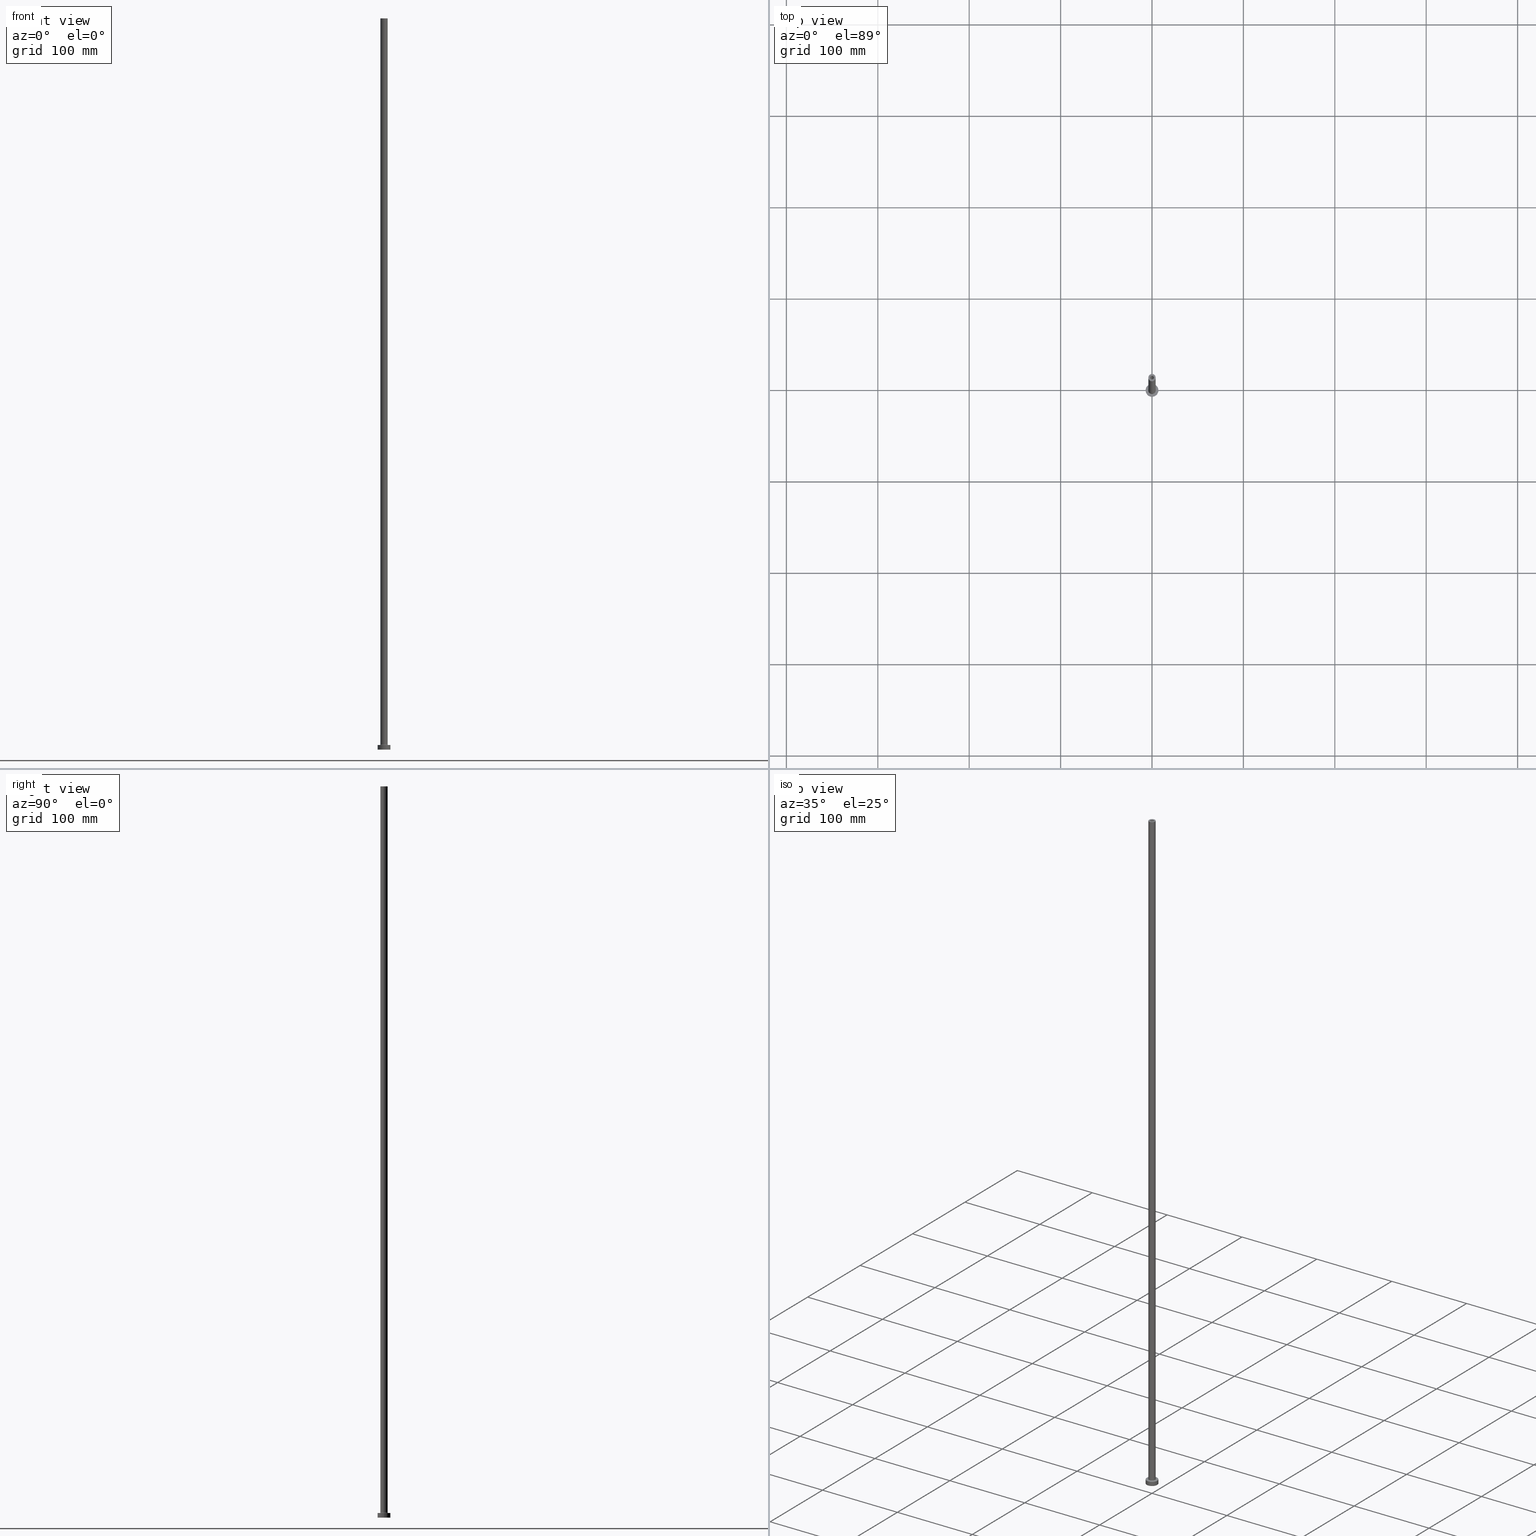
[diagram: canonical four-view strip — front | top / right | iso, engineering-drawing reading convention]
A machine part, canonical four-view strip (front | top / right | iso — engineering-drawing reading convention). The complete STEP part file that produces these views, byte-faithful:
ISO-10303-21;
HEADER;
FILE_DESCRIPTION (( 'STEP AP203' ),
    '1' );
FILE_NAME ('9640.STEP',
    '2023-02-13T17:35:24',
    ( '' ),
    ( '' ),
    'SwSTEP 2.0',
    'SolidWorks 2019',
    '' );
FILE_SCHEMA (( 'CONFIG_CONTROL_DESIGN' ));
ENDSEC;

DATA;
#1 = CYLINDRICAL_SURFACE ( 'NONE', #324, 4.000000000000000000 ) ;
#2 = EDGE_CURVE ( 'NONE', #230, #28, #88, .T. ) ;
#3 = AXIS2_PLACEMENT_3D ( 'NONE', #212, #285, #249 ) ;
#4 = EDGE_LOOP ( 'NONE', ( #56, #61, #444, #24 ) ) ;
#5 = CIRCLE ( 'NONE', #53, 2.149999999999999911 ) ;
#6 = CARTESIAN_POINT ( 'NONE',  ( -7.000000000000000000, 0.000000000000000000, 0.000000000000000000 ) ) ;
#7 = PERSON_AND_ORGANIZATION ( #158, #260 ) ;
#8 = DIRECTION ( 'NONE',  ( 1.000000000000000000, 0.000000000000000000, 0.000000000000000000 ) ) ;
#9 = EDGE_CURVE ( 'NONE', #232, #100, #204, .T. ) ;
#10 = DIRECTION ( 'NONE',  ( 0.000000000000000000, 0.000000000000000000, 1.000000000000000000 ) ) ;
#11 = CC_DESIGN_APPROVAL ( #104, ( #327 ) ) ;
#12 = COORDINATED_UNIVERSAL_TIME_OFFSET ( 1, 0, .AHEAD. ) ;
#13 = CARTESIAN_POINT ( 'NONE',  ( 0.000000000000000000, 0.000000000000000000, 800.0000000000000000 ) ) ;
#14 = PERSON_AND_ORGANIZATION_ROLE ( 'design_supplier' ) ;
#15 = DIRECTION ( 'NONE',  ( 1.000000000000000000, 0.000000000000000000, -0.000000000000000000 ) ) ;
#16 = LINE ( 'NONE', #268, #25 ) ;
#17 = AXIS2_PLACEMENT_3D ( 'NONE', #139, #73, #217 ) ;
#18 = PERSON_AND_ORGANIZATION_ROLE ( 'creator' ) ;
#19 = AXIS2_PLACEMENT_3D ( 'NONE', #371, #267, #414 ) ;
#20 = LINE ( 'NONE', #431, #250 ) ;
#21 = CARTESIAN_POINT ( 'NONE',  ( 4.000000000000000000, 4.898587196589412829E-16, 800.0000000000000000 ) ) ;
#22 = UNCERTAINTY_MEASURE_WITH_UNIT (LENGTH_MEASURE( 1.000000000000000082E-05 ), #390, 'distance_accuracy_value', 'NONE');
#23 = ORIENTED_EDGE ( 'NONE', *, *, #151, .F. ) ;
#24 = ORIENTED_EDGE ( 'NONE', *, *, #33, .T. ) ;
#25 = VECTOR ( 'NONE', #154, 1000.000000000000000 ) ;
#26 = CC_DESIGN_DATE_AND_TIME_ASSIGNMENT ( #190, #323, ( #327 ) ) ;
#27 = ORIENTED_EDGE ( 'NONE', *, *, #233, .F. ) ;
#28 = VERTEX_POINT ( 'NONE', #207 ) ;
#29 = COORDINATED_UNIVERSAL_TIME_OFFSET ( 1, 0, .AHEAD. ) ;
#30 = ORIENTED_EDGE ( 'NONE', *, *, #277, .T. ) ;
#31 = DIRECTION ( 'NONE',  ( -0.000000000000000000, -0.000000000000000000, -1.000000000000000000 ) ) ;
#32 = EDGE_LOOP ( 'NONE', ( #131, #459, #23, #363 ) ) ;
#33 = EDGE_CURVE ( 'NONE', #155, #100, #373, .T. ) ;
#34 = ORIENTED_EDGE ( 'NONE', *, *, #238, .F. ) ;
#35 = DIRECTION ( 'NONE',  ( 0.000000000000000000, 0.000000000000000000, 1.000000000000000000 ) ) ;
#36 = CIRCLE ( 'NONE', #280, 7.000000000000000000 ) ;
#37 = FACE_OUTER_BOUND ( 'NONE', #378, .T. ) ;
#38 = PERSON_AND_ORGANIZATION ( #158, #260 ) ;
#39 = DIRECTION ( 'NONE',  ( 0.000000000000000000, 0.000000000000000000, -1.000000000000000000 ) ) ;
#40 = CARTESIAN_POINT ( 'NONE',  ( 0.000000000000000000, 0.000000000000000000, 0.000000000000000000 ) ) ;
#41 = EDGE_CURVE ( 'NONE', #199, #422, #52, .T. ) ;
#42 = CARTESIAN_POINT ( 'NONE',  ( 0.000000000000000000, 0.000000000000000000, 755.0000000000000000 ) ) ;
#43 = PERSON_AND_ORGANIZATION ( #158, #260 ) ;
#44 = VECTOR ( 'NONE', #188, 1000.000000000000000 ) ;
#45 = CARTESIAN_POINT ( 'NONE',  ( 0.000000000000000000, 0.000000000000000000, 5.000000000000000000 ) ) ;
#46 = CIRCLE ( 'NONE', #338, 4.500000000000000888 ) ;
#47 = DIRECTION ( 'NONE',  ( -1.000000000000000000, 0.000000000000000000, 0.000000000000000000 ) ) ;
#48 = ORIENTED_EDGE ( 'NONE', *, *, #180, .T. ) ;
#49 = PERSON_AND_ORGANIZATION ( #158, #260 ) ;
#50 = CYLINDRICAL_SURFACE ( 'NONE', #335, 2.000000000000000000 ) ;
#51 = LOCAL_TIME ( 18, 35, 24.00000000000000000, #12 ) ;
#52 = CIRCLE ( 'NONE', #244, 4.500000000000000888 ) ;
#53 = AXIS2_PLACEMENT_3D ( 'NONE', #42, #392, #358 ) ;
#54 = ORIENTED_EDGE ( 'NONE', *, *, #171, .F. ) ;
#55 = CARTESIAN_POINT ( 'NONE',  ( 0.000000000000000000, 0.000000000000000000, 800.0000000000000000 ) ) ;
#56 = ORIENTED_EDGE ( 'NONE', *, *, #9, .F. ) ;
#57 = FACE_OUTER_BOUND ( 'NONE', #452, .T. ) ;
#58 = VERTEX_POINT ( 'NONE', #80 ) ;
#59 = DIRECTION ( 'NONE',  ( 1.000000000000000000, 0.000000000000000000, 0.000000000000000000 ) ) ;
#60 = EDGE_CURVE ( 'NONE', #125, #172, #418, .T. ) ;
#61 = ORIENTED_EDGE ( 'NONE', *, *, #91, .F. ) ;
#62 = FACE_OUTER_BOUND ( 'NONE', #303, .T. ) ;
#63 = EDGE_LOOP ( 'NONE', ( #240, #202 ) ) ;
#64 = VERTEX_POINT ( 'NONE', #223 ) ;
#65 = SECURITY_CLASSIFICATION ( '', '', #108 ) ;
#66 = CIRCLE ( 'NONE', #182, 7.000000000000000000 ) ;
#67 = DIRECTION ( 'NONE',  ( -0.000000000000000000, -0.000000000000000000, -1.000000000000000000 ) ) ;
#68 = EDGE_CURVE ( 'NONE', #232, #274, #216, .T. ) ;
#69 = ORIENTED_EDGE ( 'NONE', *, *, #361, .T. ) ;
#70 = DIRECTION ( 'NONE',  ( -0.000000000000000000, -0.000000000000000000, -1.000000000000000000 ) ) ;
#71 = PERSON_AND_ORGANIZATION_ROLE ( 'design_owner' ) ;
#72 = ADVANCED_FACE ( 'NONE', ( #360, #37 ), #218, .T. ) ;
#73 = DIRECTION ( 'NONE',  ( 0.000000000000000000, 0.000000000000000000, 1.000000000000000000 ) ) ;
#74 =( GEOMETRIC_REPRESENTATION_CONTEXT ( 3 ) GLOBAL_UNCERTAINTY_ASSIGNED_CONTEXT ( ( #22 ) ) GLOBAL_UNIT_ASSIGNED_CONTEXT ( ( #390, #103, #176 ) ) REPRESENTATION_CONTEXT ( 'NONE', 'WORKASPACE' ) );
#75 = DIRECTION ( 'NONE',  ( 1.000000000000000000, 0.000000000000000000, 0.000000000000000000 ) ) ;
#76 = CARTESIAN_POINT ( 'NONE',  ( 0.000000000000000000, 0.000000000000000000, 800.0000000000000000 ) ) ;
#77 = PERSON_AND_ORGANIZATION_ROLE ( 'classification_officer' ) ;
#78 = DIRECTION ( 'NONE',  ( 0.000000000000000000, 0.000000000000000000, 1.000000000000000000 ) ) ;
#79 = CALENDAR_DATE ( 2023, 13, 2 ) ;
#80 = CARTESIAN_POINT ( 'NONE',  ( 7.000000000000000000, 8.572527594031473190E-16, 5.000000000000000000 ) ) ;
#81 = ADVANCED_FACE ( 'NONE', ( #362, #328 ), #183, .F. ) ;
#82 = PERSON_AND_ORGANIZATION_ROLE ( 'creator' ) ;
#83 = VERTEX_POINT ( 'NONE', #325 ) ;
#84 = CC_DESIGN_PERSON_AND_ORGANIZATION_ASSIGNMENT ( #261, #77, ( #65 ) ) ;
#85 = LINE ( 'NONE', #331, #289 ) ;
#86 = ORIENTED_EDGE ( 'NONE', *, *, #238, .T. ) ;
#87 = CIRCLE ( 'NONE', #174, 2.000000000000000000 ) ;
#88 = CIRCLE ( 'NONE', #145, 2.149999999999999911 ) ;
#89 = ORIENTED_EDGE ( 'NONE', *, *, #41, .F. ) ;
#90 = ORIENTED_EDGE ( 'NONE', *, *, #449, .T. ) ;
#91 = EDGE_CURVE ( 'NONE', #274, #232, #252, .T. ) ;
#92 = ORIENTED_EDGE ( 'NONE', *, *, #195, .F. ) ;
#93 = LINE ( 'NONE', #375, #315 ) ;
#94 = LOCAL_TIME ( 18, 35, 24.00000000000000000, #396 ) ;
#95 = EDGE_LOOP ( 'NONE', ( #193, #276 ) ) ;
#96 = ORIENTED_EDGE ( 'NONE', *, *, #233, .T. ) ;
#97 = DIRECTION ( 'NONE',  ( 1.000000000000000000, 0.000000000000000000, 0.000000000000000000 ) ) ;
#98 = EDGE_LOOP ( 'NONE', ( #69, #419, #366, #34 ) ) ;
#99 = APPLICATION_PROTOCOL_DEFINITION ( 'international standard', 'config_control_design', 1994, #349 ) ;
#100 = VERTEX_POINT ( 'NONE', #283 ) ;
#101 = CARTESIAN_POINT ( 'NONE',  ( 0.000000000000000000, 0.000000000000000000, 5.499999999999949374 ) ) ;
#102 = DIRECTION ( 'NONE',  ( 0.000000000000000000, 0.000000000000000000, -1.000000000000000000 ) ) ;
#103 =( NAMED_UNIT ( * ) PLANE_ANGLE_UNIT ( ) SI_UNIT ( $, .RADIAN. ) );
#104 = APPROVAL ( #379, 'NEUR�EN�' ) ;
#105 = CARTESIAN_POINT ( 'NONE',  ( 2.149999999999999911, 2.632990618166809235E-16, 755.0000000000000000 ) ) ;
#106 = LOCAL_TIME ( 18, 35, 24.00000000000000000, #184 ) ;
#107 = FACE_OUTER_BOUND ( 'NONE', #4, .T. ) ;
#108 = SECURITY_CLASSIFICATION_LEVEL ( 'unclassified' ) ;
#109 = CARTESIAN_POINT ( 'NONE',  ( 7.000000000000000000, 8.572527594031473190E-16, 0.000000000000000000 ) ) ;
#110 = DATE_AND_TIME ( #259, #106 ) ;
#111 = DIRECTION ( 'NONE',  ( -0.000000000000000000, -0.000000000000000000, -1.000000000000000000 ) ) ;
#112 = ADVANCED_FACE ( 'NONE', ( #354 ), #146, .F. ) ;
#113 = CIRCLE ( 'NONE', #242, 2.000000000000000000 ) ;
#114 = COORDINATED_UNIVERSAL_TIME_OFFSET ( 1, 0, .AHEAD. ) ;
#115 = DIRECTION ( 'NONE',  ( 0.000000000000000000, 0.000000000000000000, 1.000000000000000000 ) ) ;
#116 = APPROVAL ( #401, 'NEUR�EN�' ) ;
#117 = DIRECTION ( 'NONE',  ( 0.000000000000000000, 0.000000000000000000, -1.000000000000000000 ) ) ;
#118 = ORIENTED_EDGE ( 'NONE', *, *, #300, .F. ) ;
#119 = DIRECTION ( 'NONE',  ( -0.000000000000000000, -0.000000000000000000, -1.000000000000000000 ) ) ;
#120 = AXIS2_PLACEMENT_3D ( 'NONE', #210, #350, #286 ) ;
#121 = ORIENTED_EDGE ( 'NONE', *, *, #277, .F. ) ;
#122 = DIRECTION ( 'NONE',  ( 0.000000000000000000, 0.000000000000000000, 1.000000000000000000 ) ) ;
#123 = CARTESIAN_POINT ( 'NONE',  ( 2.000000000000000000, 2.449293598294706414E-16, 800.0000000000000000 ) ) ;
#124 = CYLINDRICAL_SURFACE ( 'NONE', #161, 7.000000000000000000 ) ;
#125 = VERTEX_POINT ( 'NONE', #6 ) ;
#126 = APPROVAL_PERSON_ORGANIZATION ( #330, #264, #399 ) ;
#127 = CARTESIAN_POINT ( 'NONE',  ( 0.000000000000000000, 0.000000000000000000, 0.000000000000000000 ) ) ;
#128 = DATE_AND_TIME ( #458, #144 ) ;
#129 = ORIENTED_EDGE ( 'NONE', *, *, #151, .T. ) ;
#130 = DIRECTION ( 'NONE',  ( 1.000000000000000000, 0.000000000000000000, 0.000000000000000000 ) ) ;
#131 = ORIENTED_EDGE ( 'NONE', *, *, #33, .F. ) ;
#132 = AXIS2_PLACEMENT_3D ( 'NONE', #165, #194, #237 ) ;
#133 = DIRECTION ( 'NONE',  ( 0.000000000000000000, 0.000000000000000000, 1.000000000000000000 ) ) ;
#134 = AXIS2_PLACEMENT_3D ( 'NONE', #343, #173, #427 ) ;
#135 = EDGE_LOOP ( 'NONE', ( #457, #189, #48, #121 ) ) ;
#136 = DIRECTION ( 'NONE',  ( 1.000000000000000000, 0.000000000000000000, 0.000000000000000000 ) ) ;
#137 = DIRECTION ( 'NONE',  ( 0.000000000000000000, 0.000000000000000000, 1.000000000000000000 ) ) ;
#138 = MECHANICAL_CONTEXT ( 'NONE', #349, 'mechanical' ) ;
#139 = CARTESIAN_POINT ( 'NONE',  ( 0.000000000000000000, 0.000000000000000000, 755.0000000000000000 ) ) ;
#140 = CARTESIAN_POINT ( 'NONE',  ( -2.149999999999999911, 0.000000000000000000, 755.0000000000000000 ) ) ;
#141 = APPROVAL_STATUS ( 'not_yet_approved' ) ;
#142 = TOROIDAL_SURFACE ( 'NONE', #417, 4.500000000000000888, 0.5000000000000000000 ) ;
#143 = CARTESIAN_POINT ( 'NONE',  ( -4.500000000000000888, 5.510910596163089556E-16, 5.499999999999949374 ) ) ;
#144 = LOCAL_TIME ( 18, 35, 24.00000000000000000, #29 ) ;
#145 = AXIS2_PLACEMENT_3D ( 'NONE', #127, #421, #241 ) ;
#146 = CYLINDRICAL_SURFACE ( 'NONE', #281, 2.149999999999999911 ) ;
#147 = EDGE_CURVE ( 'NONE', #172, #125, #66, .T. ) ;
#148 = CARTESIAN_POINT ( 'NONE',  ( -4.500000000000000888, 5.510910596163088569E-16, 4.999999999999975131 ) ) ;
#149 = CIRCLE ( 'NONE', #213, 0.5000000000000004441 ) ;
#150 = AXIS2_PLACEMENT_3D ( 'NONE', #348, #313, #461 ) ;
#151 = EDGE_CURVE ( 'NONE', #422, #199, #46, .T. ) ;
#152 = APPROVAL_DATE_TIME ( #110, #116 ) ;
#153 = CARTESIAN_POINT ( 'NONE',  ( 0.000000000000000000, 0.000000000000000000, 800.0000000000000000 ) ) ;
#154 = DIRECTION ( 'NONE',  ( -0.000000000000000000, -0.000000000000000000, -1.000000000000000000 ) ) ;
#155 = VERTEX_POINT ( 'NONE', #257 ) ;
#156 = DESIGN_CONTEXT ( 'detailed design', #215, 'design' ) ;
#157 = DIRECTION ( 'NONE',  ( 0.000000000000000000, 0.000000000000000000, -1.000000000000000000 ) ) ;
#158 = PERSON ( 'NEUR�EN�', 'NEUR�EN�', 'NEUR�EN�', ('NEUR�EN�'), ('NEUR�EN�'), ('NEUR�EN�') ) ;
#159 = VECTOR ( 'NONE', #117, 1000.000000000000000 ) ;
#160 = DIRECTION ( 'NONE',  ( 0.000000000000000000, 0.000000000000000000, -1.000000000000000000 ) ) ;
#161 = AXIS2_PLACEMENT_3D ( 'NONE', #200, #119, #308 ) ;
#162 = ORIENTED_EDGE ( 'NONE', *, *, #9, .T. ) ;
#163 = ADVANCED_FACE ( 'NONE', ( #107 ), #293, .T. ) ;
#164 = VERTEX_POINT ( 'NONE', #105 ) ;
#165 = CARTESIAN_POINT ( 'NONE',  ( 4.500000000000000888, 0.000000000000000000, 5.499999999999949374 ) ) ;
#166 = ORIENTED_EDGE ( 'NONE', *, *, #398, .T. ) ;
#167 = CC_DESIGN_PERSON_AND_ORGANIZATION_ASSIGNMENT ( #7, #71, ( #376 ) ) ;
#168 = ORIENTED_EDGE ( 'NONE', *, *, #195, .T. ) ;
#169 = ORIENTED_EDGE ( 'NONE', *, *, #380, .F. ) ;
#170 = CARTESIAN_POINT ( 'NONE',  ( 2.000000000000000000, 2.449293598294706414E-16, 755.0000000000000000 ) ) ;
#171 = EDGE_CURVE ( 'NONE', #274, #155, #220, .T. ) ;
#172 = VERTEX_POINT ( 'NONE', #109 ) ;
#173 = DIRECTION ( 'NONE',  ( 0.000000000000000000, 0.000000000000000000, 1.000000000000000000 ) ) ;
#174 = AXIS2_PLACEMENT_3D ( 'NONE', #382, #35, #97 ) ;
#175 = DIRECTION ( 'NONE',  ( 0.000000000000000000, 0.000000000000000000, 1.000000000000000000 ) ) ;
#176 =( NAMED_UNIT ( * ) SI_UNIT ( $, .STERADIAN. ) SOLID_ANGLE_UNIT ( ) );
#177 = CARTESIAN_POINT ( 'NONE',  ( 0.000000000000000000, 0.000000000000000000, 5.499999999999949374 ) ) ;
#178 = DIRECTION ( 'NONE',  ( -0.000000000000000000, -0.000000000000000000, -1.000000000000000000 ) ) ;
#179 = CALENDAR_DATE ( 2023, 13, 2 ) ;
#180 = EDGE_CURVE ( 'NONE', #28, #230, #197, .T. ) ;
#181 = CC_DESIGN_SECURITY_CLASSIFICATION ( #65, ( #297 ) ) ;
#182 = AXIS2_PLACEMENT_3D ( 'NONE', #247, #10, #429 ) ;
#183 = PLANE ( 'NONE',  #265 ) ;
#184 = COORDINATED_UNIVERSAL_TIME_OFFSET ( 1, 0, .AHEAD. ) ;
#185 = CARTESIAN_POINT ( 'NONE',  ( 0.000000000000000000, 0.000000000000000000, 5.000000000000000000 ) ) ;
#186 = CALENDAR_DATE ( 2023, 13, 2 ) ;
#187 = EDGE_CURVE ( 'NONE', #209, #164, #5, .T. ) ;
#188 = DIRECTION ( 'NONE',  ( 0.000000000000000000, 0.000000000000000000, -1.000000000000000000 ) ) ;
#189 = ORIENTED_EDGE ( 'NONE', *, *, #221, .T. ) ;
#190 = DATE_AND_TIME ( #186, #447 ) ;
#191 = CARTESIAN_POINT ( 'NONE',  ( -2.149999999999999911, 0.000000000000000000, 0.000000000000000000 ) ) ;
#192 = CYLINDRICAL_SURFACE ( 'NONE', #344, 2.149999999999999911 ) ;
#193 = ORIENTED_EDGE ( 'NONE', *, *, #91, .T. ) ;
#194 = DIRECTION ( 'NONE',  ( 0.000000000000000000, -1.000000000000000000, 0.000000000000000000 ) ) ;
#195 = EDGE_CURVE ( 'NONE', #100, #155, #306, .T. ) ;
#196 = CIRCLE ( 'NONE', #424, 2.000000000000000000 ) ;
#197 = CIRCLE ( 'NONE', #3, 2.149999999999999911 ) ;
#198 = FACE_OUTER_BOUND ( 'NONE', #450, .T. ) ;
#199 = VERTEX_POINT ( 'NONE', #148 ) ;
#200 = CARTESIAN_POINT ( 'NONE',  ( 0.000000000000000000, 0.000000000000000000, 5.000000000000000000 ) ) ;
#201 = CC_DESIGN_DATE_AND_TIME_ASSIGNMENT ( #251, #222, ( #65 ) ) ;
#202 = ORIENTED_EDGE ( 'NONE', *, *, #147, .F. ) ;
#203 = APPROVAL_ROLE ( '' ) ;
#204 = LINE ( 'NONE', #384, #448 ) ;
#205 = AXIS2_PLACEMENT_3D ( 'NONE', #55, #122, #455 ) ;
#206 = AXIS2_PLACEMENT_3D ( 'NONE', #13, #137, #432 ) ;
#207 = CARTESIAN_POINT ( 'NONE',  ( 2.149999999999999911, 2.632990618166809235E-16, 0.000000000000000000 ) ) ;
#208 = CARTESIAN_POINT ( 'NONE',  ( 0.000000000000000000, 0.000000000000000000, 755.0000000000000000 ) ) ;
#209 = VERTEX_POINT ( 'NONE', #140 ) ;
#210 = CARTESIAN_POINT ( 'NONE',  ( 0.000000000000000000, 0.000000000000000000, 800.0000000000000000 ) ) ;
#211 = DIRECTION ( 'NONE',  ( 1.224646799147353207E-16, 1.000000000000000000, -0.000000000000000000 ) ) ;
#212 = CARTESIAN_POINT ( 'NONE',  ( 0.000000000000000000, 0.000000000000000000, 0.000000000000000000 ) ) ;
#213 = AXIS2_PLACEMENT_3D ( 'NONE', #143, #211, #428 ) ;
#214 = CYLINDRICAL_SURFACE ( 'NONE', #120, 2.000000000000000000 ) ;
#215 = APPLICATION_CONTEXT ( 'configuration controlled 3d designs of mechanical parts and assemblies' ) ;
#216 = CIRCLE ( 'NONE', #393, 4.000000000000000000 ) ;
#217 = DIRECTION ( 'NONE',  ( 1.000000000000000000, 0.000000000000000000, -0.000000000000000000 ) ) ;
#218 = PLANE ( 'NONE',  #225 ) ;
#219 = CARTESIAN_POINT ( 'NONE',  ( 0.000000000000000000, 0.000000000000000000, 755.0000000000000000 ) ) ;
#220 = LINE ( 'NONE', #436, #337 ) ;
#221 = EDGE_CURVE ( 'NONE', #164, #28, #288, .T. ) ;
#222 = DATE_TIME_ROLE ( 'classification_date' ) ;
#223 = CARTESIAN_POINT ( 'NONE',  ( -7.000000000000000000, 0.000000000000000000, 5.000000000000000000 ) ) ;
#224 = TOROIDAL_SURFACE ( 'NONE', #372, 4.500000000000000888, 0.5000000000000000000 ) ;
#225 = AXIS2_PLACEMENT_3D ( 'NONE', #321, #226, #322 ) ;
#226 = DIRECTION ( 'NONE',  ( 0.000000000000000000, 0.000000000000000000, 1.000000000000000000 ) ) ;
#227 = EDGE_CURVE ( 'NONE', #245, #442, #229, .T. ) ;
#228 = ORIENTED_EDGE ( 'NONE', *, *, #2, .F. ) ;
#229 = LINE ( 'NONE', #403, #44 ) ;
#230 = VERTEX_POINT ( 'NONE', #191 ) ;
#231 = CYLINDRICAL_SURFACE ( 'NONE', #271, 7.000000000000000000 ) ;
#232 = VERTEX_POINT ( 'NONE', #21 ) ;
#233 = EDGE_CURVE ( 'NONE', #58, #172, #16, .T. ) ;
#234 = DIRECTION ( 'NONE',  ( 0.000000000000000000, 0.000000000000000000, 1.000000000000000000 ) ) ;
#235 = FACE_OUTER_BOUND ( 'NONE', #374, .T. ) ;
#236 = ORIENTED_EDGE ( 'NONE', *, *, #413, .F. ) ;
#237 = DIRECTION ( 'NONE',  ( 0.000000000000000000, 0.000000000000000000, -1.000000000000000000 ) ) ;
#238 = EDGE_CURVE ( 'NONE', #83, #307, #85, .T. ) ;
#239 = EDGE_LOOP ( 'NONE', ( #166, #279 ) ) ;
#240 = ORIENTED_EDGE ( 'NONE', *, *, #60, .F. ) ;
#241 = DIRECTION ( 'NONE',  ( 1.000000000000000000, 0.000000000000000000, 0.000000000000000000 ) ) ;
#242 = AXIS2_PLACEMENT_3D ( 'NONE', #208, #243, #136 ) ;
#243 = DIRECTION ( 'NONE',  ( 0.000000000000000000, 0.000000000000000000, 1.000000000000000000 ) ) ;
#244 = AXIS2_PLACEMENT_3D ( 'NONE', #185, #178, #437 ) ;
#245 = VERTEX_POINT ( 'NONE', #123 ) ;
#246 = CC_DESIGN_PERSON_AND_ORGANIZATION_ASSIGNMENT ( #326, #82, ( #327 ) ) ;
#247 = CARTESIAN_POINT ( 'NONE',  ( 0.000000000000000000, 0.000000000000000000, 0.000000000000000000 ) ) ;
#248 = CARTESIAN_POINT ( 'NONE',  ( 0.000000000000000000, 0.000000000000000000, 755.0000000000000000 ) ) ;
#249 = DIRECTION ( 'NONE',  ( 1.000000000000000000, 0.000000000000000000, 0.000000000000000000 ) ) ;
#250 = VECTOR ( 'NONE', #39, 1000.000000000000000 ) ;
#251 = DATE_AND_TIME ( #79, #51 ) ;
#252 = CIRCLE ( 'NONE', #206, 4.000000000000000000 ) ;
#253 = ADVANCED_FACE ( 'NONE', ( #405, #282 ), #284, .T. ) ;
#254 = DIRECTION ( 'NONE',  ( 0.000000000000000000, 0.000000000000000000, 1.000000000000000000 ) ) ;
#255 = FACE_OUTER_BOUND ( 'NONE', #32, .T. ) ;
#256 = CARTESIAN_POINT ( 'NONE',  ( 0.000000000000000000, 0.000000000000000000, 0.000000000000000000 ) ) ;
#257 = CARTESIAN_POINT ( 'NONE',  ( -4.000000000000000000, 0.000000000000000000, 5.499999999999949374 ) ) ;
#258 = ADVANCED_FACE ( 'NONE', ( #255 ), #142, .F. ) ;
#259 = CALENDAR_DATE ( 2023, 13, 2 ) ;
#260 = ORGANIZATION ( 'NEUR�EN�', 'NEUR�EN�', '' ) ;
#261 = PERSON_AND_ORGANIZATION ( #158, #260 ) ;
#262 = ORIENTED_EDGE ( 'NONE', *, *, #41, .T. ) ;
#263 = CIRCLE ( 'NONE', #423, 2.149999999999999911 ) ;
#264 = APPROVAL ( #141, 'NEUR�EN�' ) ;
#265 = AXIS2_PLACEMENT_3D ( 'NONE', #256, #175, #15 ) ;
#266 = ORIENTED_EDGE ( 'NONE', *, *, #180, .F. ) ;
#267 = DIRECTION ( 'NONE',  ( 0.000000000000000000, 0.000000000000000000, 1.000000000000000000 ) ) ;
#268 = CARTESIAN_POINT ( 'NONE',  ( 7.000000000000000000, 8.572527594031473190E-16, 5.000000000000000000 ) ) ;
#269 = ORIENTED_EDGE ( 'NONE', *, *, #336, .T. ) ;
#270 = EDGE_CURVE ( 'NONE', #155, #199, #149, .T. ) ;
#271 = AXIS2_PLACEMENT_3D ( 'NONE', #339, #368, #453 ) ;
#272 = CIRCLE ( 'NONE', #205, 2.000000000000000000 ) ;
#273 = ORIENTED_EDGE ( 'NONE', *, *, #312, .T. ) ;
#274 = VERTEX_POINT ( 'NONE', #353 ) ;
#275 = FACE_OUTER_BOUND ( 'NONE', #98, .T. ) ;
#276 = ORIENTED_EDGE ( 'NONE', *, *, #68, .T. ) ;
#277 = EDGE_CURVE ( 'NONE', #209, #230, #20, .T. ) ;
#278 = CIRCLE ( 'NONE', #132, 0.5000000000000004441 ) ;
#279 = ORIENTED_EDGE ( 'NONE', *, *, #413, .T. ) ;
#280 = AXIS2_PLACEMENT_3D ( 'NONE', #411, #234, #59 ) ;
#281 = AXIS2_PLACEMENT_3D ( 'NONE', #426, #102, #47 ) ;
#282 = FACE_OUTER_BOUND ( 'NONE', #95, .T. ) ;
#283 = CARTESIAN_POINT ( 'NONE',  ( 4.000000000000000000, 4.898587196589412829E-16, 5.499999999999949374 ) ) ;
#284 = PLANE ( 'NONE',  #302 ) ;
#285 = DIRECTION ( 'NONE',  ( -0.000000000000000000, -0.000000000000000000, -1.000000000000000000 ) ) ;
#286 = DIRECTION ( 'NONE',  ( -1.000000000000000000, 0.000000000000000000, 0.000000000000000000 ) ) ;
#287 = CC_DESIGN_PERSON_AND_ORGANIZATION_ASSIGNMENT ( #49, #18, ( #297 ) ) ;
#288 = LINE ( 'NONE', #333, #159 ) ;
#289 = VECTOR ( 'NONE', #160, 1000.000000000000000 ) ;
#290 = FACE_BOUND ( 'NONE', #239, .T. ) ;
#291 = DIRECTION ( 'NONE',  ( 1.000000000000000000, 0.000000000000000000, 0.000000000000000000 ) ) ;
#292 = APPROVAL_ROLE ( '' ) ;
#293 = CYLINDRICAL_SURFACE ( 'NONE', #402, 4.000000000000000000 ) ;
#294 = APPROVAL_DATE_TIME ( #128, #104 ) ;
#295 = ADVANCED_BREP_SHAPE_REPRESENTATION ( '9640', ( #377, #134 ), #74 ) ;
#296 = ADVANCED_FACE ( 'NONE', ( #290, #364 ), #391, .F. ) ;
#297 = PRODUCT_DEFINITION_FORMATION_WITH_SPECIFIED_SOURCE ( 'LIBOVOLN�', '', #376, .NOT_KNOWN. ) ;
#298 = ORIENTED_EDGE ( 'NONE', *, *, #60, .T. ) ;
#299 = DIRECTION ( 'NONE',  ( -1.000000000000000000, 0.000000000000000000, 0.000000000000000000 ) ) ;
#300 = EDGE_CURVE ( 'NONE', #164, #209, #263, .T. ) ;
#301 = CARTESIAN_POINT ( 'NONE',  ( 0.000000000000000000, 0.000000000000000000, 800.0000000000000000 ) ) ;
#302 = AXIS2_PLACEMENT_3D ( 'NONE', #153, #388, #443 ) ;
#303 = EDGE_LOOP ( 'NONE', ( #27, #169, #269, #298 ) ) ;
#304 = CARTESIAN_POINT ( 'NONE',  ( 0.000000000000000000, 0.000000000000000000, 761.0811183182044033 ) ) ;
#305 = ADVANCED_FACE ( 'NONE', ( #435 ), #50, .F. ) ;
#306 = CIRCLE ( 'NONE', #408, 4.000000000000000000 ) ;
#307 = VERTEX_POINT ( 'NONE', #370 ) ;
#308 = DIRECTION ( 'NONE',  ( -1.000000000000000000, 0.000000000000000000, 0.000000000000000000 ) ) ;
#309 = APPROVAL_PERSON_ORGANIZATION ( #43, #116, #292 ) ;
#310 = EDGE_LOOP ( 'NONE', ( #228, #266 ) ) ;
#311 = ORIENTED_EDGE ( 'NONE', *, *, #270, .F. ) ;
#312 = EDGE_CURVE ( 'NONE', #100, #422, #278, .T. ) ;
#313 = DIRECTION ( 'NONE',  ( 0.000000000000000000, 0.000000000000000000, 1.000000000000000000 ) ) ;
#314 = CARTESIAN_POINT ( 'NONE',  ( 4.500000000000000888, 0.000000000000000000, 4.999999999999975131 ) ) ;
#315 = VECTOR ( 'NONE', #341, 1000.000000000000000 ) ;
#316 = EDGE_LOOP ( 'NONE', ( #332, #90, #86, #236 ) ) ;
#317 = DIRECTION ( 'NONE',  ( 0.000000000000000000, 0.000000000000000000, 1.000000000000000000 ) ) ;
#318 = DIRECTION ( 'NONE',  ( -1.000000000000000000, 0.000000000000000000, 0.000000000000000000 ) ) ;
#319 = ADVANCED_FACE ( 'NONE', ( #57 ), #231, .T. ) ;
#320 = FACE_OUTER_BOUND ( 'NONE', #412, .T. ) ;
#321 = CARTESIAN_POINT ( 'NONE',  ( 0.000000000000000000, 0.000000000000000000, 5.000000000000000000 ) ) ;
#322 = DIRECTION ( 'NONE',  ( 1.000000000000000000, 0.000000000000000000, -0.000000000000000000 ) ) ;
#323 = DATE_TIME_ROLE ( 'creation_date' ) ;
#324 = AXIS2_PLACEMENT_3D ( 'NONE', #460, #31, #347 ) ;
#325 = CARTESIAN_POINT ( 'NONE',  ( -2.000000000000000000, 0.000000000000000000, 800.0000000000000000 ) ) ;
#326 = PERSON_AND_ORGANIZATION ( #158, #260 ) ;
#327 = PRODUCT_DEFINITION ( 'NEZN�M�', '', #297, #156 ) ;
#328 = FACE_OUTER_BOUND ( 'NONE', #63, .T. ) ;
#329 = EDGE_LOOP ( 'NONE', ( #340, #118 ) ) ;
#330 = PERSON_AND_ORGANIZATION ( #158, #260 ) ;
#331 = CARTESIAN_POINT ( 'NONE',  ( -2.000000000000000000, 0.000000000000000000, 800.0000000000000000 ) ) ;
#332 = ORIENTED_EDGE ( 'NONE', *, *, #227, .F. ) ;
#333 = CARTESIAN_POINT ( 'NONE',  ( 2.149999999999999911, 2.632990618166809235E-16, 761.0811183182044033 ) ) ;
#334 = ORIENTED_EDGE ( 'NONE', *, *, #147, .T. ) ;
#335 = AXIS2_PLACEMENT_3D ( 'NONE', #301, #157, #299 ) ;
#336 = EDGE_CURVE ( 'NONE', #64, #125, #93, .T. ) ;
#337 = VECTOR ( 'NONE', #111, 1000.000000000000000 ) ;
#338 = AXIS2_PLACEMENT_3D ( 'NONE', #45, #395, #291 ) ;
#339 = CARTESIAN_POINT ( 'NONE',  ( 0.000000000000000000, 0.000000000000000000, 5.000000000000000000 ) ) ;
#340 = ORIENTED_EDGE ( 'NONE', *, *, #187, .F. ) ;
#341 = DIRECTION ( 'NONE',  ( -0.000000000000000000, -0.000000000000000000, -1.000000000000000000 ) ) ;
#342 = ORIENTED_EDGE ( 'NONE', *, *, #380, .T. ) ;
#343 = CARTESIAN_POINT ( 'NONE',  ( 0.000000000000000000, 0.000000000000000000, 0.000000000000000000 ) ) ;
#344 = AXIS2_PLACEMENT_3D ( 'NONE', #304, #445, #451 ) ;
#345 = ORIENTED_EDGE ( 'NONE', *, *, #336, .F. ) ;
#346 = ADVANCED_FACE ( 'NONE', ( #235 ), #192, .F. ) ;
#347 = DIRECTION ( 'NONE',  ( -1.000000000000000000, 0.000000000000000000, 0.000000000000000000 ) ) ;
#348 = CARTESIAN_POINT ( 'NONE',  ( 0.000000000000000000, 0.000000000000000000, 5.499999999999949374 ) ) ;
#349 = APPLICATION_CONTEXT ( 'configuration controlled 3d designs of mechanical parts and assemblies' ) ;
#350 = DIRECTION ( 'NONE',  ( 0.000000000000000000, 0.000000000000000000, -1.000000000000000000 ) ) ;
#351 = ORIENTED_EDGE ( 'NONE', *, *, #365, .T. ) ;
#352 = ADVANCED_FACE ( 'NONE', ( #62 ), #124, .T. ) ;
#353 = CARTESIAN_POINT ( 'NONE',  ( -4.000000000000000000, 0.000000000000000000, 800.0000000000000000 ) ) ;
#354 = FACE_OUTER_BOUND ( 'NONE', #135, .T. ) ;
#355 = CIRCLE ( 'NONE', #19, 7.000000000000000000 ) ;
#356 = APPLICATION_PROTOCOL_DEFINITION ( 'international standard', 'config_control_design', 1994, #215 ) ;
#357 = DIRECTION ( 'NONE',  ( 0.000000000000000000, 0.000000000000000000, 1.000000000000000000 ) ) ;
#358 = DIRECTION ( 'NONE',  ( 1.000000000000000000, 0.000000000000000000, 0.000000000000000000 ) ) ;
#359 = DIRECTION ( 'NONE',  ( 1.000000000000000000, 0.000000000000000000, 0.000000000000000000 ) ) ;
#360 = FACE_BOUND ( 'NONE', #446, .T. ) ;
#361 = EDGE_CURVE ( 'NONE', #83, #245, #272, .T. ) ;
#362 = FACE_BOUND ( 'NONE', #310, .T. ) ;
#363 = ORIENTED_EDGE ( 'NONE', *, *, #312, .F. ) ;
#364 = FACE_OUTER_BOUND ( 'NONE', #329, .T. ) ;
#365 = EDGE_CURVE ( 'NONE', #58, #64, #355, .T. ) ;
#366 = ORIENTED_EDGE ( 'NONE', *, *, #398, .F. ) ;
#367 = ORIENTED_EDGE ( 'NONE', *, *, #449, .F. ) ;
#368 = DIRECTION ( 'NONE',  ( -0.000000000000000000, -0.000000000000000000, -1.000000000000000000 ) ) ;
#369 = ORIENTED_EDGE ( 'NONE', *, *, #300, .T. ) ;
#370 = CARTESIAN_POINT ( 'NONE',  ( -2.000000000000000000, 0.000000000000000000, 755.0000000000000000 ) ) ;
#371 = CARTESIAN_POINT ( 'NONE',  ( 0.000000000000000000, 0.000000000000000000, 5.000000000000000000 ) ) ;
#372 = AXIS2_PLACEMENT_3D ( 'NONE', #101, #133, #385 ) ;
#373 = CIRCLE ( 'NONE', #150, 4.000000000000000000 ) ;
#374 = EDGE_LOOP ( 'NONE', ( #381, #369, #30, #454 ) ) ;
#375 = CARTESIAN_POINT ( 'NONE',  ( -7.000000000000000000, 0.000000000000000000, 5.000000000000000000 ) ) ;
#376 = PRODUCT ( '9640', '9640', '', ( #138 ) ) ;
#377 = MANIFOLD_SOLID_BREP ( 'Odebrat vysunut�m4', #433 ) ;
#378 = EDGE_LOOP ( 'NONE', ( #342, #351 ) ) ;
#379 = APPROVAL_STATUS ( 'not_yet_approved' ) ;
#380 = EDGE_CURVE ( 'NONE', #64, #58, #36, .T. ) ;
#381 = ORIENTED_EDGE ( 'NONE', *, *, #221, .F. ) ;
#382 = CARTESIAN_POINT ( 'NONE',  ( 0.000000000000000000, 0.000000000000000000, 800.0000000000000000 ) ) ;
#383 = CC_DESIGN_APPROVAL ( #116, ( #65 ) ) ;
#384 = CARTESIAN_POINT ( 'NONE',  ( 4.000000000000000000, 4.898587196589412829E-16, 800.0000000000000000 ) ) ;
#385 = DIRECTION ( 'NONE',  ( 1.000000000000000000, 0.000000000000000000, 0.000000000000000000 ) ) ;
#386 = ORIENTED_EDGE ( 'NONE', *, *, #68, .F. ) ;
#387 = ADVANCED_FACE ( 'NONE', ( #198 ), #1, .T. ) ;
#388 = DIRECTION ( 'NONE',  ( 0.000000000000000000, 0.000000000000000000, 1.000000000000000000 ) ) ;
#389 = CARTESIAN_POINT ( 'NONE',  ( 0.000000000000000000, 0.000000000000000000, 800.0000000000000000 ) ) ;
#390 =( LENGTH_UNIT ( ) NAMED_UNIT ( * ) SI_UNIT ( .MILLI., .METRE. ) );
#391 = PLANE ( 'NONE',  #17 ) ;
#392 = DIRECTION ( 'NONE',  ( 0.000000000000000000, 0.000000000000000000, 1.000000000000000000 ) ) ;
#393 = AXIS2_PLACEMENT_3D ( 'NONE', #389, #400, #397 ) ;
#394 = CARTESIAN_POINT ( 'NONE',  ( 0.000000000000000000, 0.000000000000000000, 5.499999999999949374 ) ) ;
#395 = DIRECTION ( 'NONE',  ( -0.000000000000000000, -0.000000000000000000, -1.000000000000000000 ) ) ;
#396 = COORDINATED_UNIVERSAL_TIME_OFFSET ( 1, 0, .AHEAD. ) ;
#397 = DIRECTION ( 'NONE',  ( 1.000000000000000000, 0.000000000000000000, 0.000000000000000000 ) ) ;
#398 = EDGE_CURVE ( 'NONE', #307, #442, #113, .T. ) ;
#399 = APPROVAL_ROLE ( '' ) ;
#400 = DIRECTION ( 'NONE',  ( 0.000000000000000000, 0.000000000000000000, 1.000000000000000000 ) ) ;
#401 = APPROVAL_STATUS ( 'not_yet_approved' ) ;
#402 = AXIS2_PLACEMENT_3D ( 'NONE', #76, #70, #318 ) ;
#403 = CARTESIAN_POINT ( 'NONE',  ( 2.000000000000000000, 2.449293598294706414E-16, 800.0000000000000000 ) ) ;
#404 = DATE_AND_TIME ( #179, #94 ) ;
#405 = FACE_BOUND ( 'NONE', #410, .T. ) ;
#406 = CC_DESIGN_PERSON_AND_ORGANIZATION_ASSIGNMENT ( #438, #14, ( #297 ) ) ;
#407 = DIRECTION ( 'NONE',  ( 1.000000000000000000, 0.000000000000000000, 0.000000000000000000 ) ) ;
#408 = AXIS2_PLACEMENT_3D ( 'NONE', #177, #78, #8 ) ;
#409 = AXIS2_PLACEMENT_3D ( 'NONE', #40, #254, #75 ) ;
#410 = EDGE_LOOP ( 'NONE', ( #416, #367 ) ) ;
#411 = CARTESIAN_POINT ( 'NONE',  ( 0.000000000000000000, 0.000000000000000000, 5.000000000000000000 ) ) ;
#412 = EDGE_LOOP ( 'NONE', ( #311, #92, #273, #89 ) ) ;
#413 = EDGE_CURVE ( 'NONE', #442, #307, #196, .T. ) ;
#414 = DIRECTION ( 'NONE',  ( 1.000000000000000000, 0.000000000000000000, 0.000000000000000000 ) ) ;
#415 = PRODUCT_DEFINITION_SHAPE ( 'NONE', 'NONE',  #327 ) ;
#416 = ORIENTED_EDGE ( 'NONE', *, *, #361, .F. ) ;
#417 = AXIS2_PLACEMENT_3D ( 'NONE', #394, #115, #407 ) ;
#418 = CIRCLE ( 'NONE', #409, 7.000000000000000000 ) ;
#419 = ORIENTED_EDGE ( 'NONE', *, *, #227, .T. ) ;
#420 = PRODUCT_RELATED_PRODUCT_CATEGORY ( 'detail', '', ( #376 ) ) ;
#421 = DIRECTION ( 'NONE',  ( -0.000000000000000000, -0.000000000000000000, -1.000000000000000000 ) ) ;
#422 = VERTEX_POINT ( 'NONE', #314 ) ;
#423 = AXIS2_PLACEMENT_3D ( 'NONE', #219, #357, #359 ) ;
#424 = AXIS2_PLACEMENT_3D ( 'NONE', #248, #317, #130 ) ;
#425 = ORIENTED_EDGE ( 'NONE', *, *, #365, .F. ) ;
#426 = CARTESIAN_POINT ( 'NONE',  ( 0.000000000000000000, 0.000000000000000000, 761.0811183182044033 ) ) ;
#427 = DIRECTION ( 'NONE',  ( 1.000000000000000000, 0.000000000000000000, 0.000000000000000000 ) ) ;
#428 = DIRECTION ( 'NONE',  ( -1.000000000000000000, 1.224646799147351482E-16, 0.000000000000000000 ) ) ;
#429 = DIRECTION ( 'NONE',  ( 1.000000000000000000, 0.000000000000000000, 0.000000000000000000 ) ) ;
#430 = SHAPE_DEFINITION_REPRESENTATION ( #415, #295 ) ;
#431 = CARTESIAN_POINT ( 'NONE',  ( -2.149999999999999911, 0.000000000000000000, 761.0811183182044033 ) ) ;
#432 = DIRECTION ( 'NONE',  ( 1.000000000000000000, 0.000000000000000000, 0.000000000000000000 ) ) ;
#433 = CLOSED_SHELL ( 'NONE', ( #439, #112, #258, #387, #319, #352, #72, #81, #163, #253, #434, #346, #296, #305 ) ) ;
#434 = ADVANCED_FACE ( 'NONE', ( #320 ), #224, .F. ) ;
#435 = FACE_OUTER_BOUND ( 'NONE', #316, .T. ) ;
#436 = CARTESIAN_POINT ( 'NONE',  ( -4.000000000000000000, 0.000000000000000000, 800.0000000000000000 ) ) ;
#437 = DIRECTION ( 'NONE',  ( 1.000000000000000000, 0.000000000000000000, 0.000000000000000000 ) ) ;
#438 = PERSON_AND_ORGANIZATION ( #158, #260 ) ;
#439 = ADVANCED_FACE ( 'NONE', ( #275 ), #214, .F. ) ;
#440 = APPROVAL_DATE_TIME ( #404, #264 ) ;
#441 = APPROVAL_PERSON_ORGANIZATION ( #38, #104, #203 ) ;
#442 = VERTEX_POINT ( 'NONE', #170 ) ;
#443 = DIRECTION ( 'NONE',  ( 1.000000000000000000, 0.000000000000000000, -0.000000000000000000 ) ) ;
#444 = ORIENTED_EDGE ( 'NONE', *, *, #171, .T. ) ;
#445 = DIRECTION ( 'NONE',  ( 0.000000000000000000, 0.000000000000000000, -1.000000000000000000 ) ) ;
#446 = EDGE_LOOP ( 'NONE', ( #129, #262 ) ) ;
#447 = LOCAL_TIME ( 18, 35, 24.00000000000000000, #114 ) ;
#448 = VECTOR ( 'NONE', #67, 1000.000000000000000 ) ;
#449 = EDGE_CURVE ( 'NONE', #245, #83, #87, .T. ) ;
#450 = EDGE_LOOP ( 'NONE', ( #386, #162, #168, #54 ) ) ;
#451 = DIRECTION ( 'NONE',  ( -1.000000000000000000, 0.000000000000000000, 0.000000000000000000 ) ) ;
#452 = EDGE_LOOP ( 'NONE', ( #425, #96, #334, #345 ) ) ;
#453 = DIRECTION ( 'NONE',  ( -1.000000000000000000, 0.000000000000000000, 0.000000000000000000 ) ) ;
#454 = ORIENTED_EDGE ( 'NONE', *, *, #2, .T. ) ;
#455 = DIRECTION ( 'NONE',  ( 1.000000000000000000, 0.000000000000000000, 0.000000000000000000 ) ) ;
#456 = CC_DESIGN_APPROVAL ( #264, ( #297 ) ) ;
#457 = ORIENTED_EDGE ( 'NONE', *, *, #187, .T. ) ;
#458 = CALENDAR_DATE ( 2023, 13, 2 ) ;
#459 = ORIENTED_EDGE ( 'NONE', *, *, #270, .T. ) ;
#460 = CARTESIAN_POINT ( 'NONE',  ( 0.000000000000000000, 0.000000000000000000, 800.0000000000000000 ) ) ;
#461 = DIRECTION ( 'NONE',  ( 1.000000000000000000, 0.000000000000000000, 0.000000000000000000 ) ) ;
ENDSEC;
END-ISO-10303-21;
